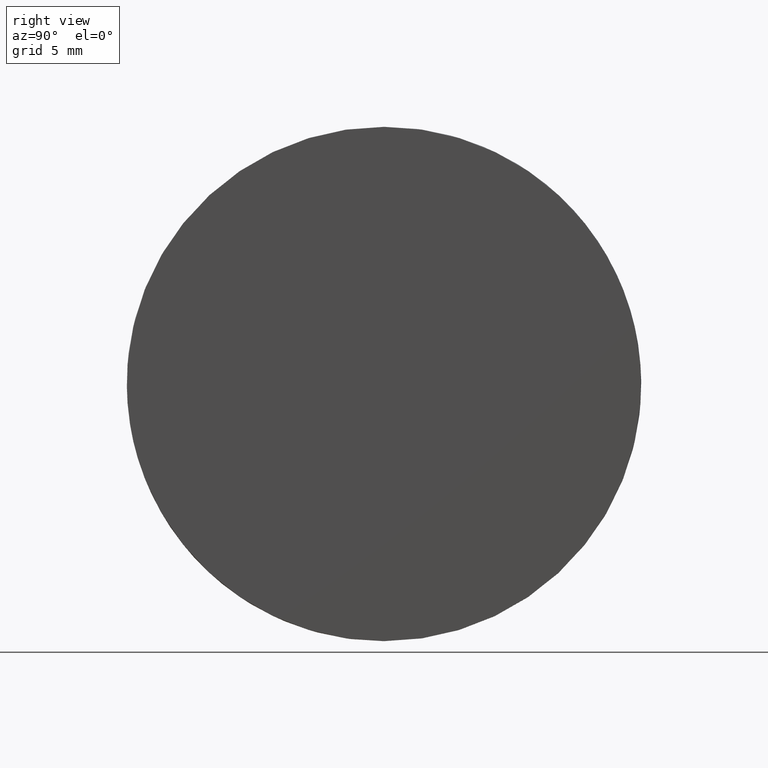
[diagram: clean part render]
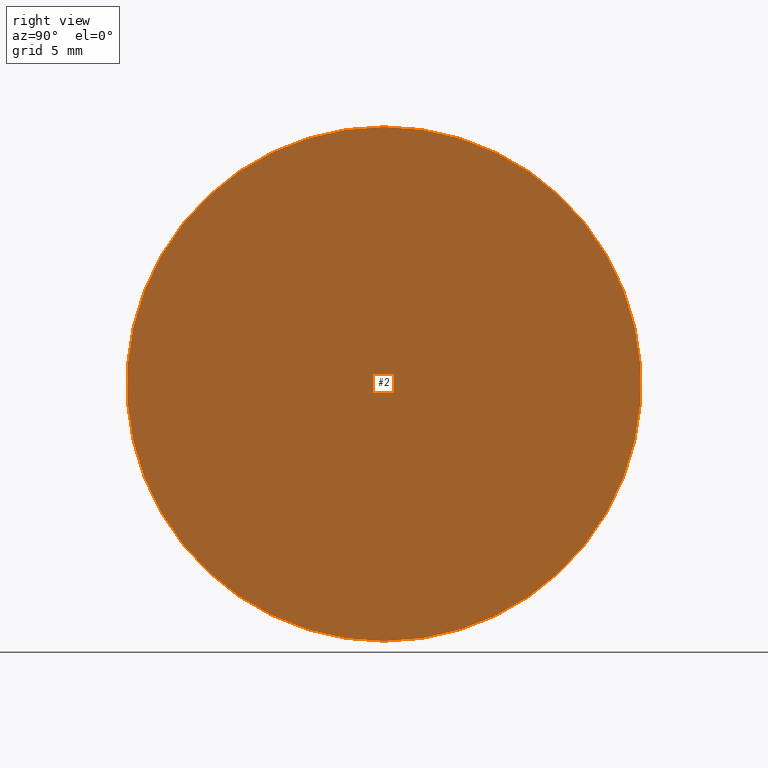
[diagram: same view with one face highlighted and labeled with its STEP entity id]
A machine part, right view. The second image highlights one B-rep face of the part: STEP entity #2.
In plain terms, the highlighted planar face has unit normal (1, 0, -0).
Its self-contained STEP definition (entity closure, byte-faithful):
#2 = ADVANCED_FACE ( 'NONE', ( #162 ), #151, .T. ) ;
#18 = CIRCLE ( 'NONE', #98, 12.50000000000000500 ) ;
#26 = DIRECTION ( 'NONE',  ( 1.000000000000000000, 0.0000000000000000000, -2.775557561562891400E-016 ) ) ;
#34 = VERTEX_POINT ( 'NONE', #132 ) ;
#69 = DIRECTION ( 'NONE',  ( 1.000000000000000000, -4.930380657631322700E-032, -2.510324564891253900E-016 ) ) ;
#70 = ORIENTED_EDGE ( 'NONE', *, *, #85, .T. ) ;
#78 = EDGE_LOOP ( 'NONE', ( #140, #70 ) ) ;
#85 = EDGE_CURVE ( 'NONE', #177, #34, #171, .T. ) ;
#98 = AXIS2_PLACEMENT_3D ( 'NONE', #158, #180, #195 ) ;
#125 = DIRECTION ( 'NONE',  ( 0.0000000000000000000, 0.0000000000000000000, -1.000000000000000000 ) ) ;
#132 = CARTESIAN_POINT ( 'NONE',  ( -37.75479566514873400, 12.50000000000000000, -12.49999999999999500 ) ) ;
#140 = ORIENTED_EDGE ( 'NONE', *, *, #219, .T. ) ;
#141 = DIRECTION ( 'NONE',  ( -2.775557561562891400E-016, 0.0000000000000000000, -1.000000000000000000 ) ) ;
#142 = CARTESIAN_POINT ( 'NONE',  ( -37.75479566514874100, 25.00000000000000000, -12.50000000000000000 ) ) ;
#151 = PLANE ( 'NONE',  #217 ) ;
#158 = CARTESIAN_POINT ( 'NONE',  ( -37.75479566514873400, 12.50000000000000000, 1.047906085936654300E-014 ) ) ;
#162 = FACE_OUTER_BOUND ( 'NONE', #78, .T. ) ;
#171 = CIRCLE ( 'NONE', #173, 12.50000000000000500 ) ;
#173 = AXIS2_PLACEMENT_3D ( 'NONE', #230, #69, #125 ) ;
#177 = VERTEX_POINT ( 'NONE', #201 ) ;
#180 = DIRECTION ( 'NONE',  ( 1.000000000000000000, -4.930380657631322700E-032, -2.510324564891253900E-016 ) ) ;
#195 = DIRECTION ( 'NONE',  ( 0.0000000000000000000, 0.0000000000000000000, -1.000000000000000000 ) ) ;
#201 = CARTESIAN_POINT ( 'NONE',  ( -37.75479566514873400, 12.50000000000000200, 12.50000000000001600 ) ) ;
#217 = AXIS2_PLACEMENT_3D ( 'NONE', #142, #26, #141 ) ;
#219 = EDGE_CURVE ( 'NONE', #34, #177, #18, .T. ) ;
#230 = CARTESIAN_POINT ( 'NONE',  ( -37.75479566514873400, 12.50000000000000000, 1.047906085936654300E-014 ) ) ;